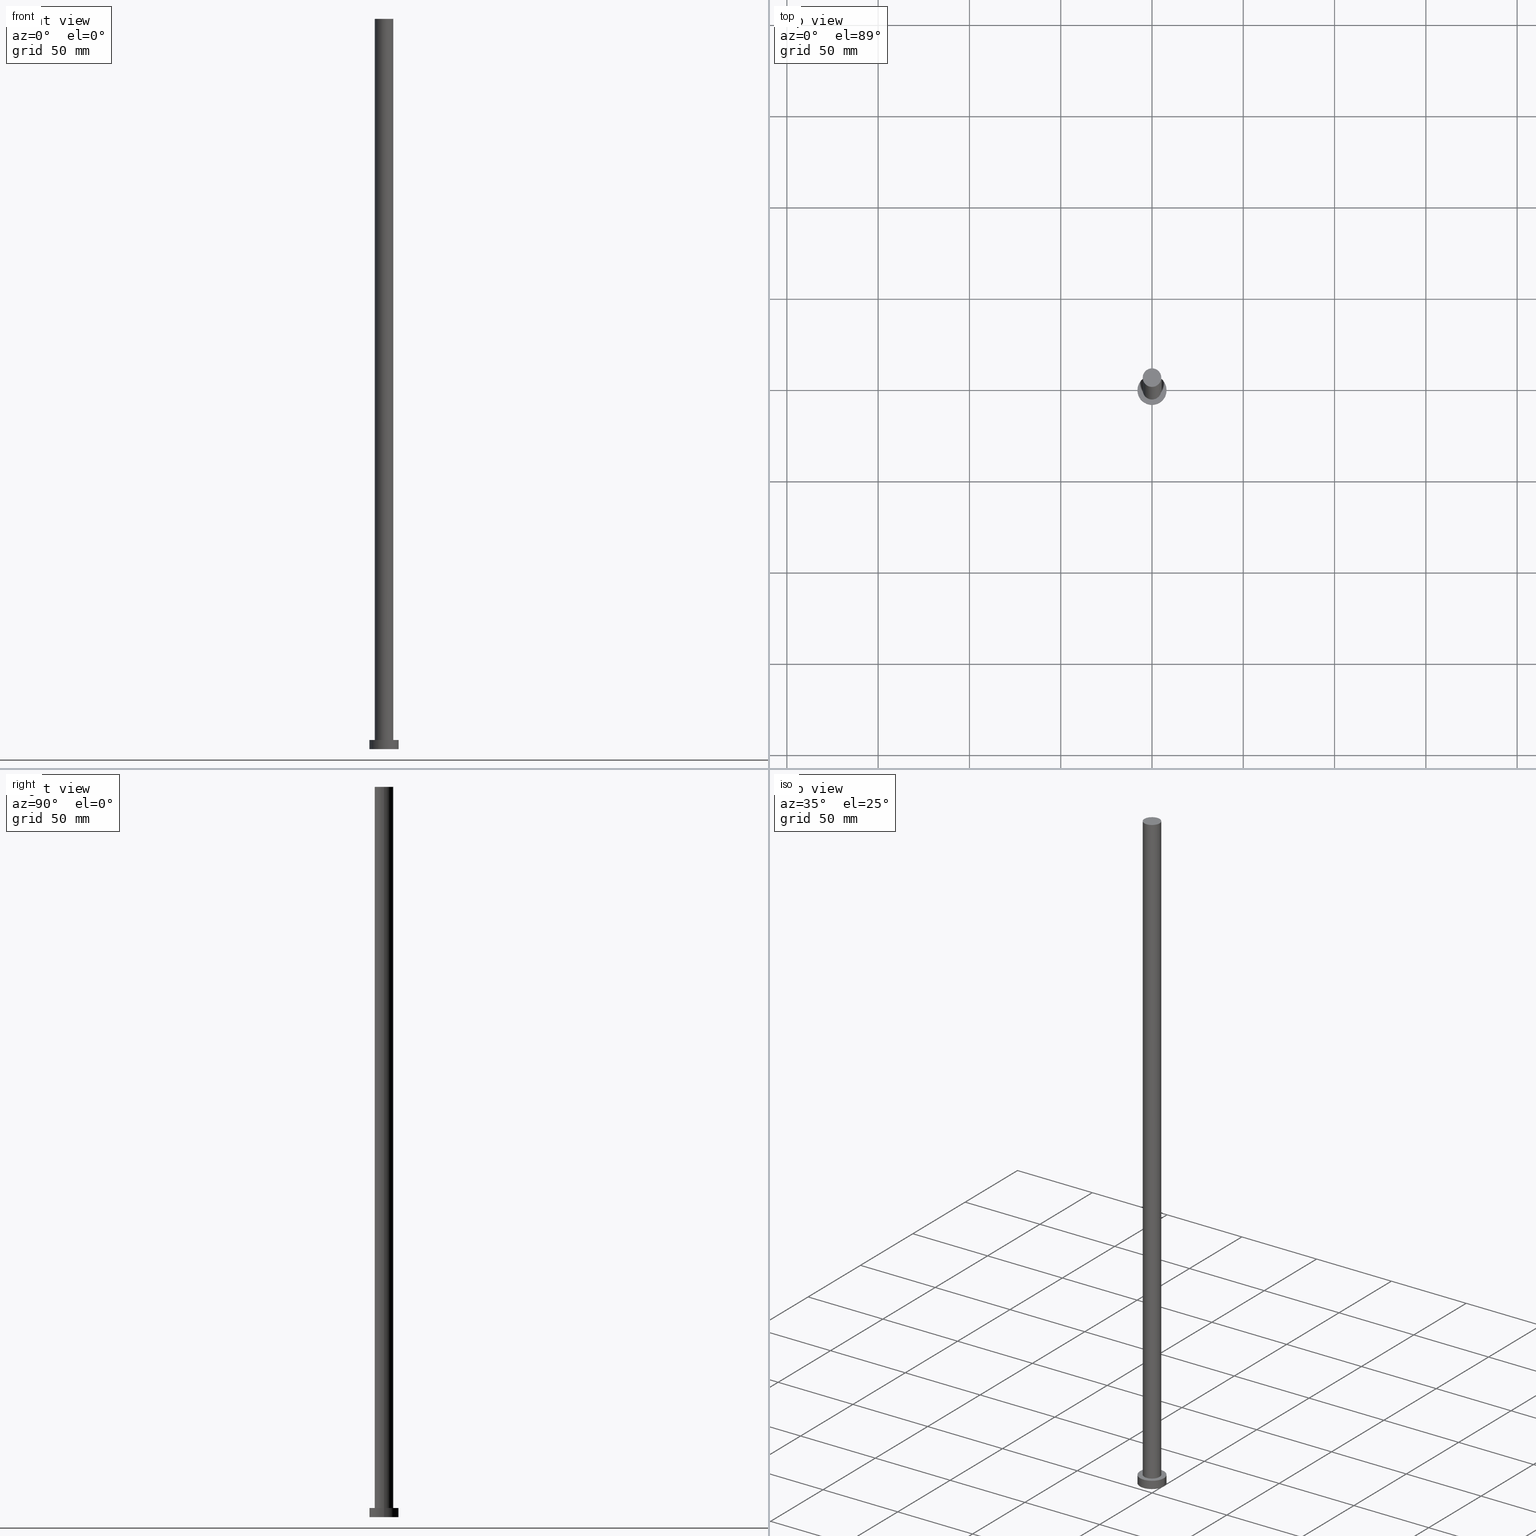
[diagram: canonical four-view strip — front | top / right | iso, engineering-drawing reading convention]
A machine part, canonical four-view strip (front | top / right | iso — engineering-drawing reading convention). The complete STEP part file that produces these views, byte-faithful:
ISO-10303-21;
HEADER;
FILE_DESCRIPTION (( 'STEP AP203' ),
    '1' );
FILE_NAME ('b60d.STEP',
    '2023-02-13T13:14:57',
    ( '' ),
    ( '' ),
    'SwSTEP 2.0',
    'SolidWorks 2019',
    '' );
FILE_SCHEMA (( 'CONFIG_CONTROL_DESIGN' ));
ENDSEC;

DATA;
#1 = EDGE_LOOP ( 'NONE', ( #113, #206 ) ) ;
#2 = ORIENTED_EDGE ( 'NONE', *, *, #110, .F. ) ;
#3 = APPLICATION_PROTOCOL_DEFINITION ( 'international standard', 'config_control_design', 1994, #22 ) ;
#4 = DESIGN_CONTEXT ( 'detailed design', #167, 'design' ) ;
#5 = LOCAL_TIME ( 14, 14, 57.00000000000000000, #208 ) ;
#6 = CARTESIAN_POINT ( 'NONE',  ( 0.000000000000000000, 0.000000000000000000, 5.000000000000000000 ) ) ;
#7 = DIRECTION ( 'NONE',  ( 0.000000000000000000, 0.000000000000000000, 1.000000000000000000 ) ) ;
#8 = AXIS2_PLACEMENT_3D ( 'NONE', #143, #162, #181 ) ;
#9 = DIRECTION ( 'NONE',  ( -0.000000000000000000, -0.000000000000000000, -1.000000000000000000 ) ) ;
#10 = EDGE_CURVE ( 'NONE', #41, #138, #140, .T. ) ;
#11 = CIRCLE ( 'NONE', #131, 8.000000000000000000 ) ;
#12 = PERSON_AND_ORGANIZATION_ROLE ( 'creator' ) ;
#13 = EDGE_LOOP ( 'NONE', ( #35, #139, #180, #25 ) ) ;
#14 = APPROVAL_ROLE ( '' ) ;
#15 = ADVANCED_BREP_SHAPE_REPRESENTATION ( 'b60d', ( #52, #231 ), #135 ) ;
#16 = COORDINATED_UNIVERSAL_TIME_OFFSET ( 1, 0, .AHEAD. ) ;
#17 = APPROVAL_ROLE ( '' ) ;
#18 = CARTESIAN_POINT ( 'NONE',  ( -8.000000000000000000, 0.000000000000000000, 5.000000000000000000 ) ) ;
#19 = CC_DESIGN_PERSON_AND_ORGANIZATION_ASSIGNMENT ( #38, #127, ( #251 ) ) ;
#20 = AXIS2_PLACEMENT_3D ( 'NONE', #67, #29, #30 ) ;
#21 = FACE_OUTER_BOUND ( 'NONE', #1, .T. ) ;
#22 = APPLICATION_CONTEXT ( 'configuration controlled 3d designs of mechanical parts and assemblies' ) ;
#23 = ORIENTED_EDGE ( 'NONE', *, *, #39, .F. ) ;
#24 = ADVANCED_FACE ( 'NONE', ( #134, #21 ), #96, .T. ) ;
#25 = ORIENTED_EDGE ( 'NONE', *, *, #156, .T. ) ;
#26 = VECTOR ( 'NONE', #9, 1000.000000000000000 ) ;
#27 = DIRECTION ( 'NONE',  ( -0.000000000000000000, -0.000000000000000000, -1.000000000000000000 ) ) ;
#28 =( NAMED_UNIT ( * ) SI_UNIT ( $, .STERADIAN. ) SOLID_ANGLE_UNIT ( ) );
#29 = DIRECTION ( 'NONE',  ( -0.000000000000000000, -0.000000000000000000, -1.000000000000000000 ) ) ;
#30 = DIRECTION ( 'NONE',  ( -1.000000000000000000, 0.000000000000000000, 0.000000000000000000 ) ) ;
#31 = PERSON ( 'NEUR�EN�', 'NEUR�EN�', 'NEUR�EN�', ('NEUR�EN�'), ('NEUR�EN�'), ('NEUR�EN�') ) ;
#32 = LINE ( 'NONE', #142, #26 ) ;
#33 = LOCAL_TIME ( 14, 14, 57.00000000000000000, #56 ) ;
#34 = PERSON_AND_ORGANIZATION ( #31, #118 ) ;
#35 = ORIENTED_EDGE ( 'NONE', *, *, #149, .F. ) ;
#36 = DATE_AND_TIME ( #53, #33 ) ;
#37 = APPROVAL_STATUS ( 'not_yet_approved' ) ;
#38 = PERSON_AND_ORGANIZATION ( #31, #118 ) ;
#39 = EDGE_CURVE ( 'NONE', #187, #61, #209, .T. ) ;
#40 = EDGE_LOOP ( 'NONE', ( #23, #133, #197, #159 ) ) ;
#41 = VERTEX_POINT ( 'NONE', #136 ) ;
#42 = ORIENTED_EDGE ( 'NONE', *, *, #168, .F. ) ;
#43 = ADVANCED_FACE ( 'NONE', ( #80 ), #76, .T. ) ;
#44 = CARTESIAN_POINT ( 'NONE',  ( 0.000000000000000000, 0.000000000000000000, 5.000000000000000000 ) ) ;
#45 = DIRECTION ( 'NONE',  ( 1.000000000000000000, 0.000000000000000000, 0.000000000000000000 ) ) ;
#46 = UNCERTAINTY_MEASURE_WITH_UNIT (LENGTH_MEASURE( 1.000000000000000082E-05 ), #199, 'distance_accuracy_value', 'NONE');
#47 = CC_DESIGN_SECURITY_CLASSIFICATION ( #251, ( #108 ) ) ;
#48 = DIRECTION ( 'NONE',  ( -0.000000000000000000, -0.000000000000000000, -1.000000000000000000 ) ) ;
#49 = DIRECTION ( 'NONE',  ( 1.000000000000000000, 0.000000000000000000, 0.000000000000000000 ) ) ;
#50 = DIRECTION ( 'NONE',  ( 1.000000000000000000, 0.000000000000000000, 0.000000000000000000 ) ) ;
#51 = CIRCLE ( 'NONE', #195, 5.099999999999999645 ) ;
#52 = MANIFOLD_SOLID_BREP ( 'P�idat vysunut�m3', #122 ) ;
#53 = CALENDAR_DATE ( 2023, 13, 2 ) ;
#54 = DATE_AND_TIME ( #148, #98 ) ;
#55 = AXIS2_PLACEMENT_3D ( 'NONE', #219, #241, #120 ) ;
#56 = COORDINATED_UNIVERSAL_TIME_OFFSET ( 1, 0, .AHEAD. ) ;
#57 = EDGE_CURVE ( 'NONE', #61, #138, #59, .T. ) ;
#58 = VERTEX_POINT ( 'NONE', #158 ) ;
#59 = LINE ( 'NONE', #18, #117 ) ;
#60 = EDGE_CURVE ( 'NONE', #62, #58, #177, .T. ) ;
#61 = VERTEX_POINT ( 'NONE', #100 ) ;
#62 = VERTEX_POINT ( 'NONE', #93 ) ;
#63 = ORIENTED_EDGE ( 'NONE', *, *, #210, .T. ) ;
#64 = ORIENTED_EDGE ( 'NONE', *, *, #146, .T. ) ;
#65 = VECTOR ( 'NONE', #254, 1000.000000000000000 ) ;
#66 = CC_DESIGN_DATE_AND_TIME_ASSIGNMENT ( #54, #150, ( #247 ) ) ;
#67 = CARTESIAN_POINT ( 'NONE',  ( 0.000000000000000000, 0.000000000000000000, 400.0000000000000000 ) ) ;
#68 = CARTESIAN_POINT ( 'NONE',  ( 0.000000000000000000, 0.000000000000000000, 0.000000000000000000 ) ) ;
#69 = DIRECTION ( 'NONE',  ( -0.000000000000000000, -0.000000000000000000, -1.000000000000000000 ) ) ;
#70 = FACE_OUTER_BOUND ( 'NONE', #13, .T. ) ;
#71 = FACE_OUTER_BOUND ( 'NONE', #194, .T. ) ;
#72 = DIRECTION ( 'NONE',  ( 1.000000000000000000, 0.000000000000000000, 0.000000000000000000 ) ) ;
#73 = EDGE_LOOP ( 'NONE', ( #215, #63 ) ) ;
#74 = APPROVAL_STATUS ( 'not_yet_approved' ) ;
#75 = CC_DESIGN_PERSON_AND_ORGANIZATION_ASSIGNMENT ( #166, #172, ( #111 ) ) ;
#76 = CYLINDRICAL_SURFACE ( 'NONE', #92, 8.000000000000000000 ) ;
#77 = CYLINDRICAL_SURFACE ( 'NONE', #218, 8.000000000000000000 ) ;
#78 = EDGE_LOOP ( 'NONE', ( #154, #252, #238, #245 ) ) ;
#79 = AXIS2_PLACEMENT_3D ( 'NONE', #94, #175, #45 ) ;
#80 = FACE_OUTER_BOUND ( 'NONE', #40, .T. ) ;
#81 = ORIENTED_EDGE ( 'NONE', *, *, #210, .F. ) ;
#82 = EDGE_CURVE ( 'NONE', #187, #41, #155, .T. ) ;
#83 = CARTESIAN_POINT ( 'NONE',  ( 0.000000000000000000, 0.000000000000000000, 5.000000000000000000 ) ) ;
#84 = LOCAL_TIME ( 14, 14, 57.00000000000000000, #16 ) ;
#85 = DIRECTION ( 'NONE',  ( 0.000000000000000000, 0.000000000000000000, 1.000000000000000000 ) ) ;
#86 = CARTESIAN_POINT ( 'NONE',  ( 0.000000000000000000, 0.000000000000000000, 400.0000000000000000 ) ) ;
#87 = CARTESIAN_POINT ( 'NONE',  ( 5.099999999999999645, 6.245698675651499853E-16, 5.000000000000000000 ) ) ;
#88 = AXIS2_PLACEMENT_3D ( 'NONE', #68, #124, #200 ) ;
#89 = PERSON_AND_ORGANIZATION_ROLE ( 'design_supplier' ) ;
#90 = CC_DESIGN_APPROVAL ( #184, ( #108 ) ) ;
#91 = APPROVAL_ROLE ( '' ) ;
#92 = AXIS2_PLACEMENT_3D ( 'NONE', #44, #27, #115 ) ;
#93 = CARTESIAN_POINT ( 'NONE',  ( -5.099999999999999645, 0.000000000000000000, 400.0000000000000000 ) ) ;
#94 = CARTESIAN_POINT ( 'NONE',  ( 0.000000000000000000, 0.000000000000000000, 5.000000000000000000 ) ) ;
#95 = CARTESIAN_POINT ( 'NONE',  ( 0.000000000000000000, 0.000000000000000000, 0.000000000000000000 ) ) ;
#96 = PLANE ( 'NONE',  #97 ) ;
#97 = AXIS2_PLACEMENT_3D ( 'NONE', #214, #157, #236 ) ;
#98 = LOCAL_TIME ( 14, 14, 57.00000000000000000, #128 ) ;
#99 = ADVANCED_FACE ( 'NONE', ( #173 ), #77, .T. ) ;
#100 = CARTESIAN_POINT ( 'NONE',  ( -8.000000000000000000, 0.000000000000000000, 5.000000000000000000 ) ) ;
#101 = PLANE ( 'NONE',  #8 ) ;
#102 = PLANE ( 'NONE',  #88 ) ;
#103 = CARTESIAN_POINT ( 'NONE',  ( 8.000000000000000000, 9.797174393178825657E-16, 5.000000000000000000 ) ) ;
#104 = CYLINDRICAL_SURFACE ( 'NONE', #20, 5.099999999999999645 ) ;
#105 = AXIS2_PLACEMENT_3D ( 'NONE', #121, #161, #50 ) ;
#106 = PERSON_AND_ORGANIZATION_ROLE ( 'creator' ) ;
#107 = ADVANCED_FACE ( 'NONE', ( #239 ), #101, .T. ) ;
#108 = PRODUCT_DEFINITION_FORMATION_WITH_SPECIFIED_SOURCE ( 'LIBOVOLN�', '', #111, .NOT_KNOWN. ) ;
#109 = SECURITY_CLASSIFICATION_LEVEL ( 'unclassified' ) ;
#110 = EDGE_CURVE ( 'NONE', #138, #41, #250, .T. ) ;
#111 = PRODUCT ( 'b60d', 'b60d', '', ( #244 ) ) ;
#112 = ORIENTED_EDGE ( 'NONE', *, *, #149, .T. ) ;
#113 = ORIENTED_EDGE ( 'NONE', *, *, #191, .T. ) ;
#114 = DIRECTION ( 'NONE',  ( 0.000000000000000000, 0.000000000000000000, 1.000000000000000000 ) ) ;
#115 = DIRECTION ( 'NONE',  ( -1.000000000000000000, 0.000000000000000000, 0.000000000000000000 ) ) ;
#116 = DIRECTION ( 'NONE',  ( 0.000000000000000000, 0.000000000000000000, 1.000000000000000000 ) ) ;
#117 = VECTOR ( 'NONE', #178, 1000.000000000000000 ) ;
#118 = ORGANIZATION ( 'NEUR�EN�', 'NEUR�EN�', '' ) ;
#119 = CARTESIAN_POINT ( 'NONE',  ( -5.099999999999999645, 0.000000000000000000, 5.000000000000000000 ) ) ;
#120 = DIRECTION ( 'NONE',  ( 1.000000000000000000, 0.000000000000000000, 0.000000000000000000 ) ) ;
#121 = CARTESIAN_POINT ( 'NONE',  ( 0.000000000000000000, 0.000000000000000000, 0.000000000000000000 ) ) ;
#122 = CLOSED_SHELL ( 'NONE', ( #132, #43, #99, #24, #164, #217, #107 ) ) ;
#123 = AXIS2_PLACEMENT_3D ( 'NONE', #183, #69, #222 ) ;
#124 = DIRECTION ( 'NONE',  ( 0.000000000000000000, 0.000000000000000000, 1.000000000000000000 ) ) ;
#125 = APPROVAL_DATE_TIME ( #36, #182 ) ;
#126 = DATE_AND_TIME ( #165, #84 ) ;
#127 = PERSON_AND_ORGANIZATION_ROLE ( 'classification_officer' ) ;
#128 = COORDINATED_UNIVERSAL_TIME_OFFSET ( 1, 0, .AHEAD. ) ;
#129 = AXIS2_PLACEMENT_3D ( 'NONE', #237, #116, #198 ) ;
#130 = PRODUCT_DEFINITION_SHAPE ( 'NONE', 'NONE',  #247 ) ;
#131 = AXIS2_PLACEMENT_3D ( 'NONE', #202, #221, #49 ) ;
#132 = ADVANCED_FACE ( 'NONE', ( #240 ), #104, .T. ) ;
#133 = ORIENTED_EDGE ( 'NONE', *, *, #82, .T. ) ;
#134 = FACE_BOUND ( 'NONE', #151, .T. ) ;
#135 =( GEOMETRIC_REPRESENTATION_CONTEXT ( 3 ) GLOBAL_UNCERTAINTY_ASSIGNED_CONTEXT ( ( #46 ) ) GLOBAL_UNIT_ASSIGNED_CONTEXT ( ( #199, #203, #28 ) ) REPRESENTATION_CONTEXT ( 'NONE', 'WORKASPACE' ) );
#136 = CARTESIAN_POINT ( 'NONE',  ( 8.000000000000000000, 9.797174393178825657E-16, 0.000000000000000000 ) ) ;
#137 = PRODUCT_RELATED_PRODUCT_CATEGORY ( 'detail', '', ( #111 ) ) ;
#138 = VERTEX_POINT ( 'NONE', #141 ) ;
#139 = ORIENTED_EDGE ( 'NONE', *, *, #60, .F. ) ;
#140 = CIRCLE ( 'NONE', #190, 8.000000000000000000 ) ;
#141 = CARTESIAN_POINT ( 'NONE',  ( -8.000000000000000000, 0.000000000000000000, 0.000000000000000000 ) ) ;
#142 = CARTESIAN_POINT ( 'NONE',  ( -5.099999999999999645, 0.000000000000000000, 400.0000000000000000 ) ) ;
#143 = CARTESIAN_POINT ( 'NONE',  ( 0.000000000000000000, 0.000000000000000000, 400.0000000000000000 ) ) ;
#144 = CC_DESIGN_APPROVAL ( #182, ( #251 ) ) ;
#145 = CYLINDRICAL_SURFACE ( 'NONE', #123, 5.099999999999999645 ) ;
#146 = EDGE_CURVE ( 'NONE', #255, #196, #204, .T. ) ;
#147 = PERSON_AND_ORGANIZATION ( #31, #118 ) ;
#148 = CALENDAR_DATE ( 2023, 13, 2 ) ;
#149 = EDGE_CURVE ( 'NONE', #58, #255, #163, .T. ) ;
#150 = DATE_TIME_ROLE ( 'creation_date' ) ;
#151 = EDGE_LOOP ( 'NONE', ( #213, #176 ) ) ;
#152 = APPLICATION_PROTOCOL_DEFINITION ( 'international standard', 'config_control_design', 1994, #167 ) ;
#153 = LOCAL_TIME ( 14, 14, 57.00000000000000000, #223 ) ;
#154 = ORIENTED_EDGE ( 'NONE', *, *, #82, .F. ) ;
#155 = LINE ( 'NONE', #234, #65 ) ;
#156 = EDGE_CURVE ( 'NONE', #196, #255, #169, .T. ) ;
#157 = DIRECTION ( 'NONE',  ( 0.000000000000000000, 0.000000000000000000, 1.000000000000000000 ) ) ;
#158 = CARTESIAN_POINT ( 'NONE',  ( 5.099999999999999645, 6.245698675651499853E-16, 400.0000000000000000 ) ) ;
#159 = ORIENTED_EDGE ( 'NONE', *, *, #57, .F. ) ;
#160 = VECTOR ( 'NONE', #48, 1000.000000000000000 ) ;
#161 = DIRECTION ( 'NONE',  ( 0.000000000000000000, 0.000000000000000000, 1.000000000000000000 ) ) ;
#162 = DIRECTION ( 'NONE',  ( 0.000000000000000000, 0.000000000000000000, 1.000000000000000000 ) ) ;
#163 = LINE ( 'NONE', #242, #160 ) ;
#164 = ADVANCED_FACE ( 'NONE', ( #71 ), #102, .F. ) ;
#165 = CALENDAR_DATE ( 2023, 13, 2 ) ;
#166 = PERSON_AND_ORGANIZATION ( #31, #118 ) ;
#167 = APPLICATION_CONTEXT ( 'configuration controlled 3d designs of mechanical parts and assemblies' ) ;
#168 = EDGE_CURVE ( 'NONE', #62, #196, #32, .T. ) ;
#169 = CIRCLE ( 'NONE', #55, 5.099999999999999645 ) ;
#170 = SHAPE_DEFINITION_REPRESENTATION ( #130, #15 ) ;
#171 = DATE_AND_TIME ( #189, #153 ) ;
#172 = PERSON_AND_ORGANIZATION_ROLE ( 'design_owner' ) ;
#173 = FACE_OUTER_BOUND ( 'NONE', #78, .T. ) ;
#174 = APPROVAL_PERSON_ORGANIZATION ( #248, #184, #91 ) ;
#175 = DIRECTION ( 'NONE',  ( 0.000000000000000000, 0.000000000000000000, 1.000000000000000000 ) ) ;
#176 = ORIENTED_EDGE ( 'NONE', *, *, #146, .F. ) ;
#177 = CIRCLE ( 'NONE', #129, 5.099999999999999645 ) ;
#178 = DIRECTION ( 'NONE',  ( -0.000000000000000000, -0.000000000000000000, -1.000000000000000000 ) ) ;
#179 = APPROVAL_PERSON_ORGANIZATION ( #34, #253, #17 ) ;
#180 = ORIENTED_EDGE ( 'NONE', *, *, #168, .T. ) ;
#181 = DIRECTION ( 'NONE',  ( 1.000000000000000000, 0.000000000000000000, -0.000000000000000000 ) ) ;
#182 = APPROVAL ( #37, 'NEUR�EN�' ) ;
#183 = CARTESIAN_POINT ( 'NONE',  ( 0.000000000000000000, 0.000000000000000000, 400.0000000000000000 ) ) ;
#184 = APPROVAL ( #205, 'NEUR�EN�' ) ;
#185 = DIRECTION ( 'NONE',  ( -0.000000000000000000, -0.000000000000000000, -1.000000000000000000 ) ) ;
#186 = DIRECTION ( 'NONE',  ( 1.000000000000000000, 0.000000000000000000, 0.000000000000000000 ) ) ;
#187 = VERTEX_POINT ( 'NONE', #103 ) ;
#188 = CALENDAR_DATE ( 2023, 13, 2 ) ;
#189 = CALENDAR_DATE ( 2023, 13, 2 ) ;
#190 = AXIS2_PLACEMENT_3D ( 'NONE', #95, #114, #193 ) ;
#191 = EDGE_CURVE ( 'NONE', #61, #187, #11, .T. ) ;
#192 = DIRECTION ( 'NONE',  ( 0.000000000000000000, 0.000000000000000000, 1.000000000000000000 ) ) ;
#193 = DIRECTION ( 'NONE',  ( 1.000000000000000000, 0.000000000000000000, 0.000000000000000000 ) ) ;
#194 = EDGE_LOOP ( 'NONE', ( #2, #216 ) ) ;
#195 = AXIS2_PLACEMENT_3D ( 'NONE', #86, #85, #186 ) ;
#196 = VERTEX_POINT ( 'NONE', #119 ) ;
#197 = ORIENTED_EDGE ( 'NONE', *, *, #10, .T. ) ;
#198 = DIRECTION ( 'NONE',  ( 1.000000000000000000, 0.000000000000000000, 0.000000000000000000 ) ) ;
#199 =( LENGTH_UNIT ( ) NAMED_UNIT ( * ) SI_UNIT ( .MILLI., .METRE. ) );
#200 = DIRECTION ( 'NONE',  ( 1.000000000000000000, 0.000000000000000000, -0.000000000000000000 ) ) ;
#201 = DIRECTION ( 'NONE',  ( -1.000000000000000000, 0.000000000000000000, 0.000000000000000000 ) ) ;
#202 = CARTESIAN_POINT ( 'NONE',  ( 0.000000000000000000, 0.000000000000000000, 5.000000000000000000 ) ) ;
#203 =( NAMED_UNIT ( * ) PLANE_ANGLE_UNIT ( ) SI_UNIT ( $, .RADIAN. ) );
#204 = CIRCLE ( 'NONE', #211, 5.099999999999999645 ) ;
#205 = APPROVAL_STATUS ( 'not_yet_approved' ) ;
#206 = ORIENTED_EDGE ( 'NONE', *, *, #39, .T. ) ;
#207 = PERSON_AND_ORGANIZATION ( #31, #118 ) ;
#208 = COORDINATED_UNIVERSAL_TIME_OFFSET ( 1, 0, .AHEAD. ) ;
#209 = CIRCLE ( 'NONE', #79, 8.000000000000000000 ) ;
#210 = EDGE_CURVE ( 'NONE', #58, #62, #51, .T. ) ;
#211 = AXIS2_PLACEMENT_3D ( 'NONE', #83, #7, #220 ) ;
#212 = DATE_AND_TIME ( #188, #5 ) ;
#213 = ORIENTED_EDGE ( 'NONE', *, *, #156, .F. ) ;
#214 = CARTESIAN_POINT ( 'NONE',  ( 0.000000000000000000, 0.000000000000000000, 5.000000000000000000 ) ) ;
#215 = ORIENTED_EDGE ( 'NONE', *, *, #60, .T. ) ;
#216 = ORIENTED_EDGE ( 'NONE', *, *, #10, .F. ) ;
#217 = ADVANCED_FACE ( 'NONE', ( #70 ), #145, .T. ) ;
#218 = AXIS2_PLACEMENT_3D ( 'NONE', #6, #185, #201 ) ;
#219 = CARTESIAN_POINT ( 'NONE',  ( 0.000000000000000000, 0.000000000000000000, 5.000000000000000000 ) ) ;
#220 = DIRECTION ( 'NONE',  ( 1.000000000000000000, 0.000000000000000000, 0.000000000000000000 ) ) ;
#221 = DIRECTION ( 'NONE',  ( 0.000000000000000000, 0.000000000000000000, 1.000000000000000000 ) ) ;
#222 = DIRECTION ( 'NONE',  ( -1.000000000000000000, 0.000000000000000000, 0.000000000000000000 ) ) ;
#223 = COORDINATED_UNIVERSAL_TIME_OFFSET ( 1, 0, .AHEAD. ) ;
#224 = CC_DESIGN_DATE_AND_TIME_ASSIGNMENT ( #212, #228, ( #251 ) ) ;
#225 = APPROVAL_DATE_TIME ( #171, #253 ) ;
#226 = CC_DESIGN_APPROVAL ( #253, ( #247 ) ) ;
#227 = CARTESIAN_POINT ( 'NONE',  ( 0.000000000000000000, 0.000000000000000000, 0.000000000000000000 ) ) ;
#228 = DATE_TIME_ROLE ( 'classification_date' ) ;
#229 = CC_DESIGN_PERSON_AND_ORGANIZATION_ASSIGNMENT ( #207, #12, ( #247 ) ) ;
#230 = PERSON_AND_ORGANIZATION ( #31, #118 ) ;
#231 = AXIS2_PLACEMENT_3D ( 'NONE', #227, #192, #72 ) ;
#232 = EDGE_LOOP ( 'NONE', ( #81, #112, #64, #42 ) ) ;
#233 = CC_DESIGN_PERSON_AND_ORGANIZATION_ASSIGNMENT ( #246, #106, ( #108 ) ) ;
#234 = CARTESIAN_POINT ( 'NONE',  ( 8.000000000000000000, 9.797174393178825657E-16, 5.000000000000000000 ) ) ;
#235 = APPROVAL_PERSON_ORGANIZATION ( #147, #182, #14 ) ;
#236 = DIRECTION ( 'NONE',  ( 1.000000000000000000, 0.000000000000000000, -0.000000000000000000 ) ) ;
#237 = CARTESIAN_POINT ( 'NONE',  ( 0.000000000000000000, 0.000000000000000000, 400.0000000000000000 ) ) ;
#238 = ORIENTED_EDGE ( 'NONE', *, *, #57, .T. ) ;
#239 = FACE_OUTER_BOUND ( 'NONE', #73, .T. ) ;
#240 = FACE_OUTER_BOUND ( 'NONE', #232, .T. ) ;
#241 = DIRECTION ( 'NONE',  ( 0.000000000000000000, 0.000000000000000000, 1.000000000000000000 ) ) ;
#242 = CARTESIAN_POINT ( 'NONE',  ( 5.099999999999999645, 6.245698675651499853E-16, 400.0000000000000000 ) ) ;
#243 = CC_DESIGN_PERSON_AND_ORGANIZATION_ASSIGNMENT ( #230, #89, ( #108 ) ) ;
#244 = MECHANICAL_CONTEXT ( 'NONE', #22, 'mechanical' ) ;
#245 = ORIENTED_EDGE ( 'NONE', *, *, #110, .T. ) ;
#246 = PERSON_AND_ORGANIZATION ( #31, #118 ) ;
#247 = PRODUCT_DEFINITION ( 'NEZN�M�', '', #108, #4 ) ;
#248 = PERSON_AND_ORGANIZATION ( #31, #118 ) ;
#249 = APPROVAL_DATE_TIME ( #126, #184 ) ;
#250 = CIRCLE ( 'NONE', #105, 8.000000000000000000 ) ;
#251 = SECURITY_CLASSIFICATION ( '', '', #109 ) ;
#252 = ORIENTED_EDGE ( 'NONE', *, *, #191, .F. ) ;
#253 = APPROVAL ( #74, 'NEUR�EN�' ) ;
#254 = DIRECTION ( 'NONE',  ( -0.000000000000000000, -0.000000000000000000, -1.000000000000000000 ) ) ;
#255 = VERTEX_POINT ( 'NONE', #87 ) ;
ENDSEC;
END-ISO-10303-21;
